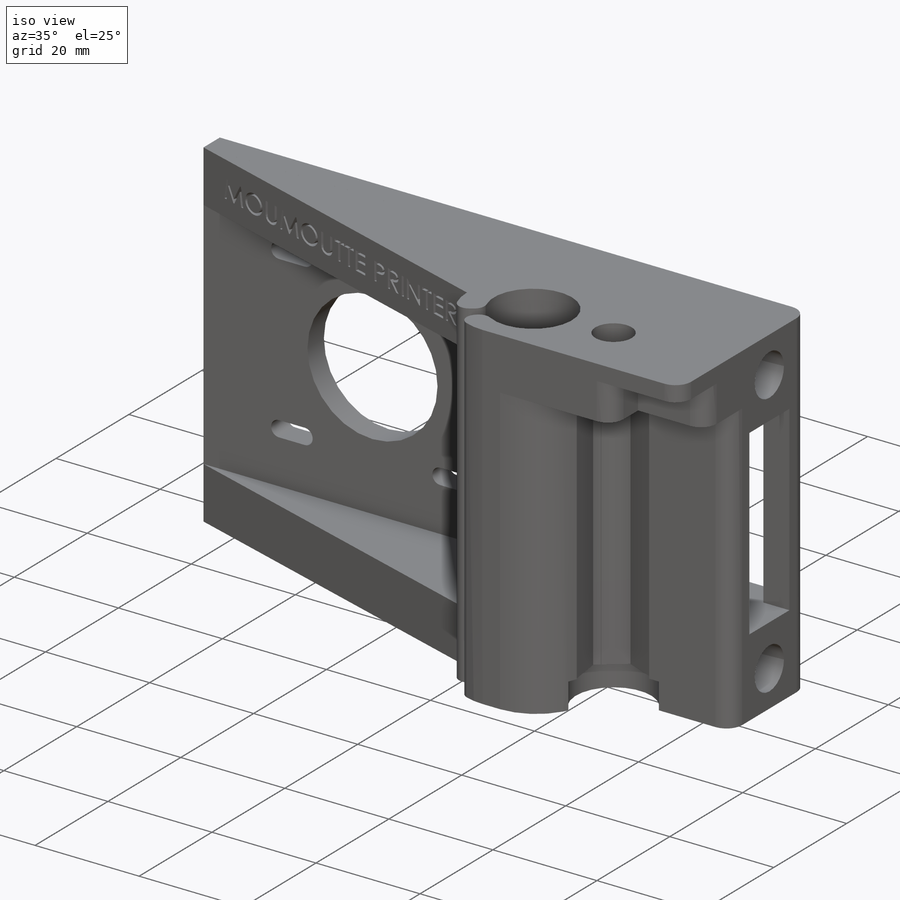
[diagram: iso view]
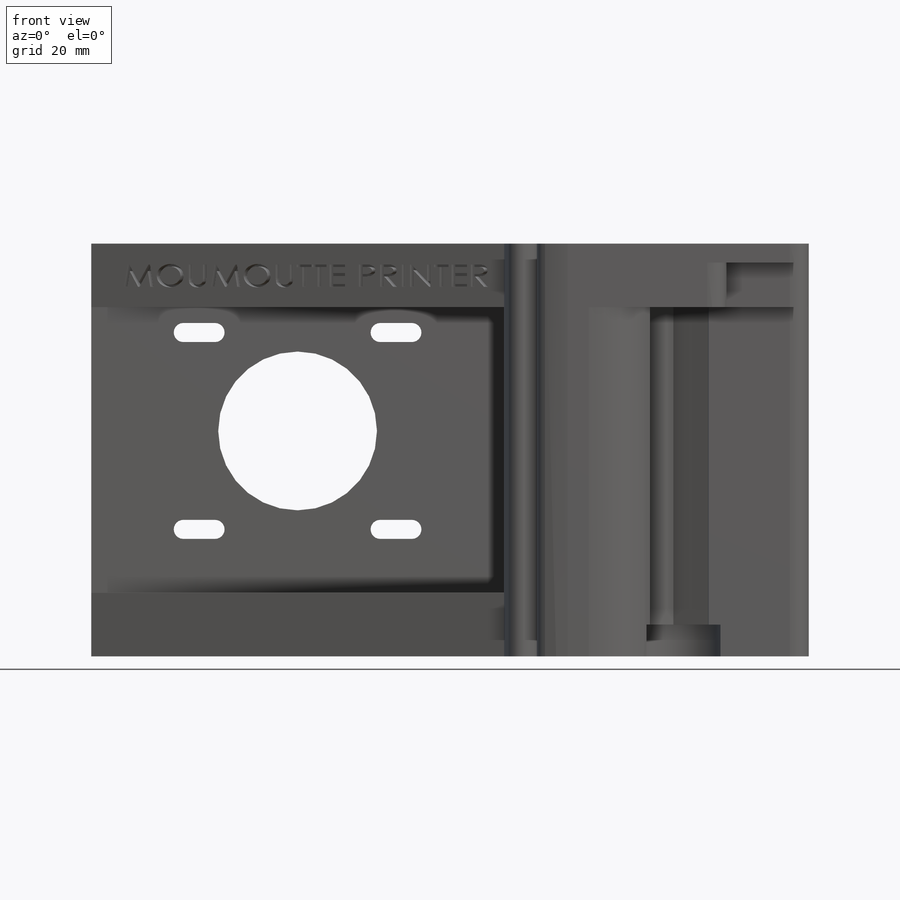
[diagram: front view]
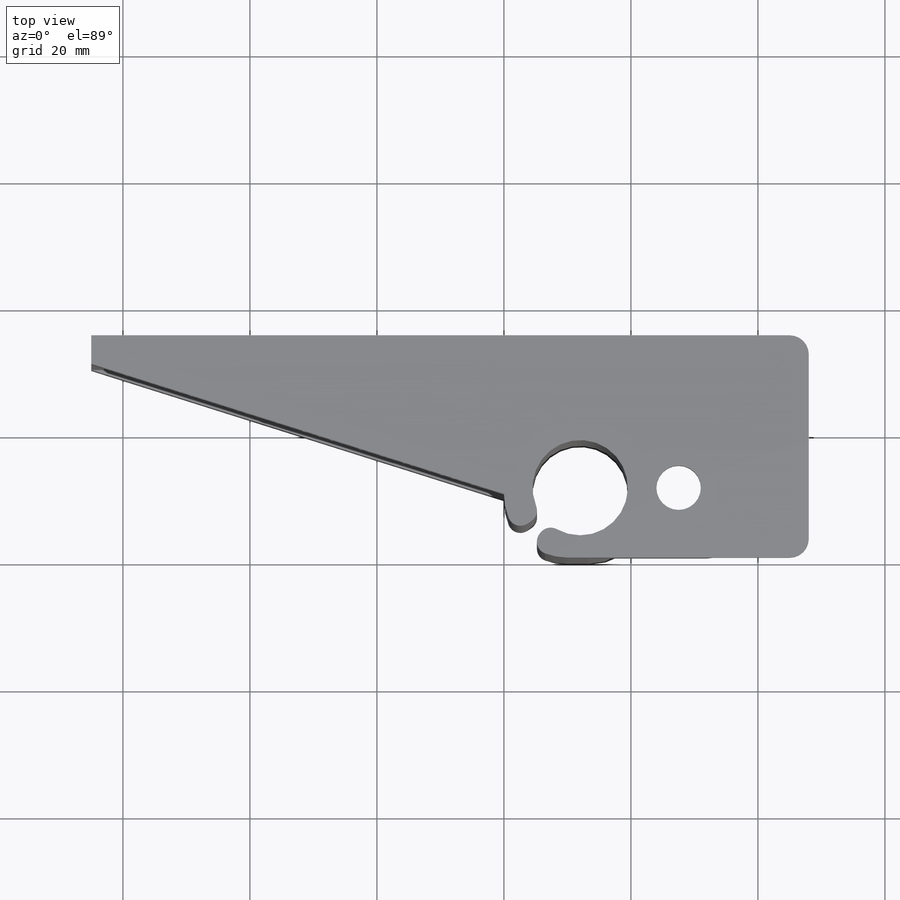
[diagram: top view]
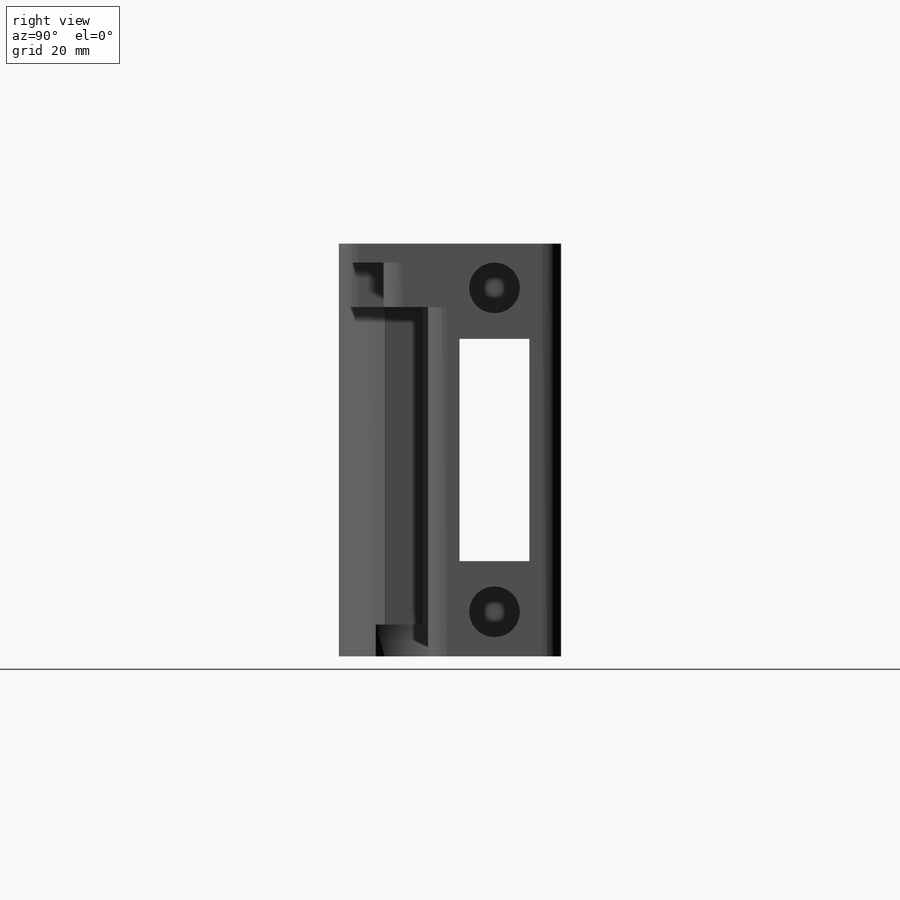
[diagram: right view]
SOLIDWORKS PART (.sldprt)
format: sldprt  version: not decoded by parser v0  size: 716,800 bytes
history: native  units: mm
features: sketch x15, cut_extrude x11, extrude x4, fillet x3, material x1 (+13 scaffold rows collapsed)
feature tree (47):
  scaffold x13  (default folders/planes/origin — collapsed)
  material  "Material <not specified>"
  sketch  "Sketch1"  dims[D1=48.0mm D2=35.0mm]
  extrude  "Boss-Extrude1"  Depth=65mm
  sketch  "Sketch2"  dims[c1.D1=15.0mm c1.D5=7.0mm c1.D6=10.0mm c1.D2=11.0mm c1.D3=12.0mm c1.D4=11.0mm c2.D6=15.5mm]
  cut_extrude  "Cut-Extrude1"  [1 undecoded]
  sketch  "Sketch3"  dims[D1=21.0mm D2=10.0mm]
  cut_extrude  "Cut-Extrude2"  Depth=25mm
  sketch  "Sketch4"  dims[D5=8.0mm D6=8.0mm D1=5.0mm D2=5.0mm D3=15.0mm D4=15.0mm D7=10.0mm D8=10.0mm D9=7.0mm D10=7.0mm]
  cut_extrude  "Cut-Extrude3"  [1 undecoded]
  sketch  "Sketch7"  dims[D1=8.0mm D2=8.0mm D3=7.0mm D4=7.0mm D5=10.5mm D6=10.5mm]
  cut_extrude  "Cut-Extrude4"  Depth=28.5mm
  sketch  "Sketch8"  dims[D1=15.0mm D2=15.0mm D3=5.0mm D4=5.0mm]
  cut_extrude  "Cut-Extrude5"  Depth=10mm
  sketch  "Sketch9"  dims[D1=7.0mm D2=7.0mm]
  cut_extrude  "Cut-Extrude7"  Depth=13mm
  fillet  "Fillet2"  Radius=3mm
  sketch  "Sketch10"  dims[D1=10.2mm]
  cut_extrude  "Cut-Extrude8"  Depth=60mm
  sketch  "Sketch11"  dims[D1=14.5mm]
  cut_extrude  "Cut-Extrude9"  Depth=5mm
  fillet  "Fillet3"  Radius=10mm
  sketch  "Sketch12"  dims[D1=3.0mm D2=~2.993356mm]
  cut_extrude  "Cut-Extrude11"  [1 undecoded]
  fillet  "Fillet4"  Radius=2mm
  sketch  "Sketch14"  dims[D1=65.0mm D2=65.0mm]
  extrude  "Boss-Extrude2"  Depth=4.5mm
  sketch  "Sketch15"
  extrude  "Boss-Extrude3"  Depth=10mm
  sketch  "Sketch16"
  extrude  "Boss-Extrude4"  Depth=10mm
  sketch  "Sketch17"  dims[c1.D1=3.0mm c1.D2=3.0mm c1.D3=3.0mm c1.D4=3.0mm c1.D16=25.0mm c1.D5=31.0mm c1.D6=31.0mm c1.D7=31.0mm c1.D8=31.0mm c1.D9=10.0mm c1.D10=10.0mm c1.D11=3.0mm c1.D12=10.0mm c2.D3=3.0mm c2.D4=5.0mm c2.D7=5.0mm c2.D8=10.0mm c2.D9=31.0mm c2.D2=31.0mm c2.D5=5.0mm c2.D6=~1.896789mm c3.D5=3.0mm c3.D6=5.0mm c3.D10=3.0mm c3.D12=5.0mm c3.D13=31.0mm c3.D14=31.0mm c3.D15=20.0mm c3.D17=15.5mm c3.D18=15.5mm c4.D15=32.5mm]
  cut_extrude  "Cut-Extrude12"  [1 undecoded]
  sketch  "Sketch18"
  cut_extrude  "Cut-Extrude13"  Depth=2mm
decode coverage: 26 of 33 modeling features carry decoded parameters
note: ~ marks probable driven/reference dimensions
note: 4 parameter values undecoded
summary: no parameter record found for 4 features
note: suppression state not decoded; provenance and decode notes live in map.json
